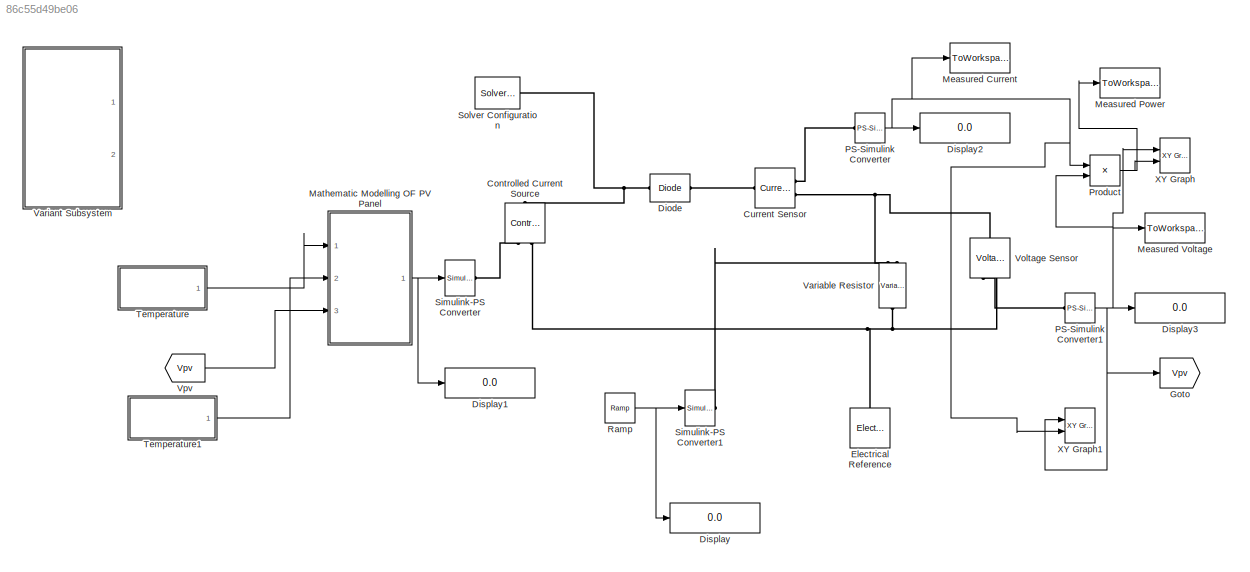
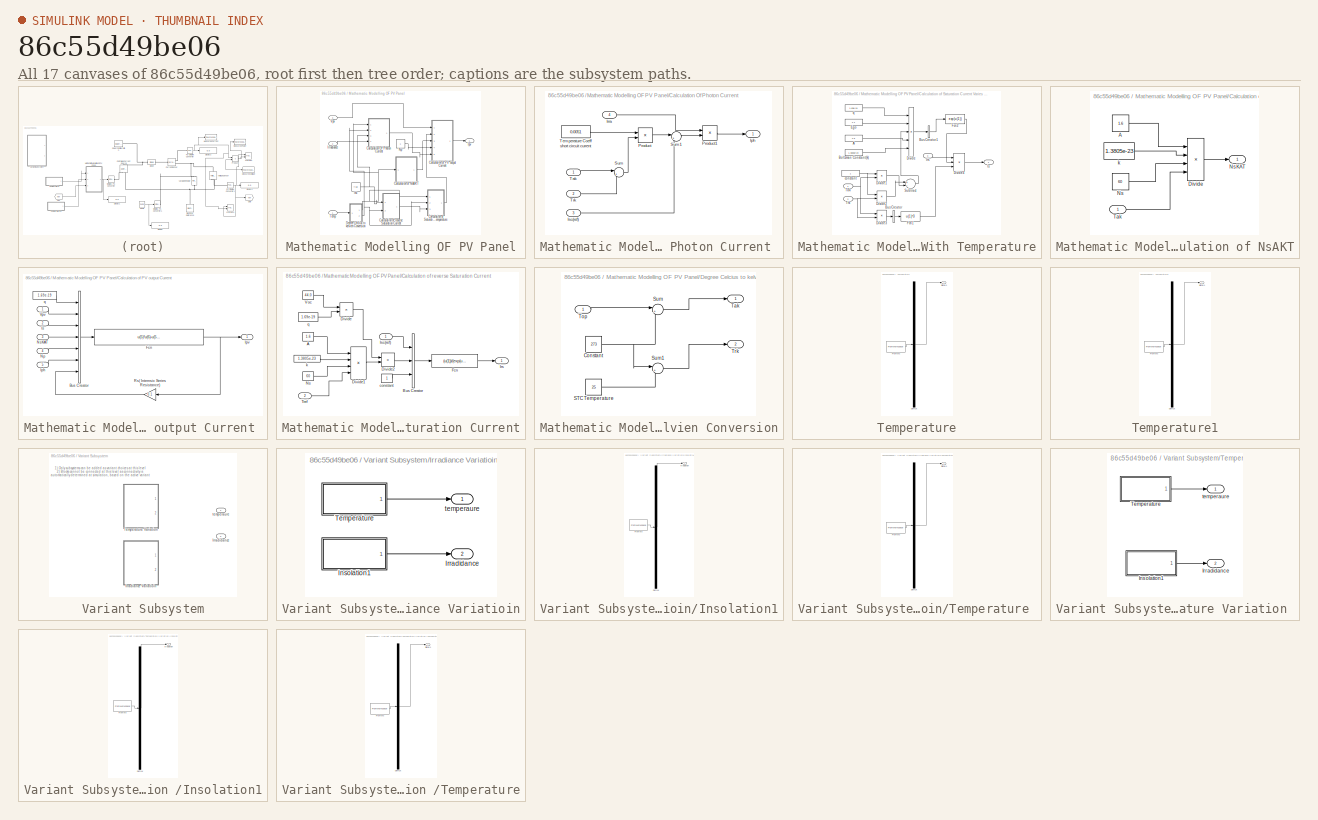
[diagram: thumbnail index - all 17 canvases of the model, root first then tree order]
MODEL slx_86c55d49be06
KIND model
BLOCK [Reference] Controlled Current Source  REF=fl_lib/Electrical/Electrical Sources/Controlled Current
Source
  ClassName = controlled_current
  ComponentPath = foundation.electrical.sources.controlled_current
  ComponentVariantNames = controlled_current
  ComponentVariants = foundation.electrical.sources.controlled_current
  Ports = [0, 0, 0, 0, 0, 1, 2]
  SchemaVersion = 1
  SourceBlock = fl_lib/Electrical/Electrical Sources/Controlled Current\nSource
  SourceFile = foundation.electrical.sources.controlled_current
  SourceType = Controlled Current\nSource
BLOCK [Reference] Current Sensor  REF=fl_lib/Electrical/Electrical Sensors/Current Sensor
  ClassName = current
  ComponentPath = foundation.electrical.sensors.current
  ComponentVariantNames = current
  ComponentVariants = foundation.electrical.sensors.current
  Ports = [0, 0, 0, 0, 0, 1, 2]
  SchemaVersion = 1
  SourceBlock = fl_lib/Electrical/Electrical Sensors/Current Sensor
  SourceFile = foundation.electrical.sensors.current
  SourceType = Current Sensor
BLOCK [Reference] Diode  REF=fl_lib/Electrical/Electrical Elements/Diode
  ClassName = pwl_diode
  ComponentPath = foundation.electrical.elements.pwl_diode
  ComponentVariantNames = pwl_diode
  ComponentVariants = foundation.electrical.elements.pwl_diode
  Goff = 1e-8
  Goff_unit = 1/Ohm
  Ports = [0, 0, 0, 0, 0, 1, 1]
  Ron = 0.3
  Ron_unit = Ohm
  SchemaVersion = 1
  SourceBlock = fl_lib/Electrical/Electrical Elements/Diode
  SourceFile = foundation.electrical.elements.pwl_diode
  SourceType = Diode
  Vf = 0.6
  Vf_unit = V
  i = 0
  i_priority = High
  i_specify = off
  i_unit = A
  v = 0
  v_priority = High
  v_specify = off
  v_unit = V
BLOCK [Display] Display
  Decimation = 1
  Ports = [1]
BLOCK [Display] Display1
  Decimation = 1
  Ports = [1]
BLOCK [Display] Display2
  Decimation = 1
  Ports = [1]
BLOCK [Display] Display3
  Decimation = 1
  Ports = [1]
BLOCK [Reference] Electrical Reference  REF=fl_lib/Electrical/Electrical Elements/Electrical Reference
  ClassName = reference
  ComponentPath = foundation.electrical.elements.reference
  ComponentVariantNames = reference
  ComponentVariants = foundation.electrical.elements.reference
  Ports = [0, 0, 0, 0, 0, 1]
  SchemaVersion = 1
  SourceBlock = fl_lib/Electrical/Electrical Elements/Electrical Reference
  SourceFile = foundation.electrical.elements.reference
  SourceType = Electrical Reference
BLOCK [Goto] Goto
  GotoTag = Vpv
BLOCK [SubSystem] Mathematic Modelling OF PV Panel
  Ports = [3, 1]
  RequestExecContextInheritance = off
BLOCK [SubSystem] Mathematic Modelling OF PV Panel/Calculation Of Photon Current 
  Ports = [4, 1]
  RequestExecContextInheritance = off
BLOCK [Outport] Mathematic Modelling OF PV Panel/Calculation Of Photon Current /Iph
  IconDisplay = Port number
BLOCK [Inport] Mathematic Modelling OF PV Panel/Calculation Of Photon Current /Irra
  IconDisplay = Port number
  Port = 4
BLOCK [Inport] Mathematic Modelling OF PV Panel/Calculation Of Photon Current /Isc(ref)
  IconDisplay = Port number
  Port = 3
BLOCK [Product] Mathematic Modelling OF PV Panel/Calculation Of Photon Current /Product
  InputSameDT = off
  OutDataTypeStr = Inherit: Inherit via internal rule
  Ports = [2, 1]
  RndMeth = Floor
  SaturateOnIntegerOverflow = off
BLOCK [Product] Mathematic Modelling OF PV Panel/Calculation Of Photon Current /Product1
  InputSameDT = off
  OutDataTypeStr = Inherit: Inherit via internal rule
  Ports = [2, 1]
  RndMeth = Floor
  SaturateOnIntegerOverflow = off
BLOCK [Sum] Mathematic Modelling OF PV Panel/Calculation Of Photon Current /Sum
  IconShape = round
  InputSameDT = off
  Inputs = |+-
  OutDataTypeStr = Inherit: Inherit via internal rule
  Ports = [2, 1]
  SaturateOnIntegerOverflow = off
BLOCK [Sum] Mathematic Modelling OF PV Panel/Calculation Of Photon Current /Sum1
  IconShape = round
  InputSameDT = off
  Inputs = |++
  OutDataTypeStr = Inherit: Inherit via internal rule
  Ports = [2, 1]
  SaturateOnIntegerOverflow = off
BLOCK [Inport] Mathematic Modelling OF PV Panel/Calculation Of Photon Current /Tak
  IconDisplay = Port number
BLOCK [Constant] Mathematic Modelling OF PV Panel/Calculation Of Photon Current /Temperature Coeff short circuit current 
  Value = 0.0051
BLOCK [Inport] Mathematic Modelling OF PV Panel/Calculation Of Photon Current /Trk
  IconDisplay = Port number
  Port = 2
BLOCK [SubSystem] Mathematic Modelling OF PV Panel/Calculation of NsAKT
  Ports = [1, 1]
  RequestExecContextInheritance = off
BLOCK [Constant] Mathematic Modelling OF PV Panel/Calculation of NsAKT/A
  Value = 1.6
BLOCK [Product] Mathematic Modelling OF PV Panel/Calculation of NsAKT/Divide
  InputSameDT = off
  Inputs = ****
  OutDataTypeStr = Inherit: Inherit via internal rule
  Ports = [4, 1]
  RndMeth = Floor
  SaturateOnIntegerOverflow = off
BLOCK [Constant] Mathematic Modelling OF PV Panel/Calculation of NsAKT/Ns
  Value = 60
BLOCK [Outport] Mathematic Modelling OF PV Panel/Calculation of NsAKT/NsKAT
  IconDisplay = Port number
BLOCK [Inport] Mathematic Modelling OF PV Panel/Calculation of NsAKT/Tak 
  IconDisplay = Port number
BLOCK [Constant] Mathematic Modelling OF PV Panel/Calculation of NsAKT/k
  Value = 1.3805e-23
BLOCK [SubSystem] Mathematic Modelling OF PV Panel/Calculation of PV output Current 
  Ports = [5, 1]
  RequestExecContextInheritance = off
BLOCK [BusCreator] Mathematic Modelling OF PV Panel/Calculation of PV output Current /Bus Creator
  DisplayOption = bar
  Inputs = 7
  Ports = [7, 1]
BLOCK [Fcn] Mathematic Modelling OF PV Panel/Calculation of PV output Current /Fcn
  Expr = u(5)*u(6)-u(5)*u(3)*(exp((u(1)*(u(2)+u(7)))/(u(4))) - 1)
BLOCK [Inport] Mathematic Modelling OF PV Panel/Calculation of PV output Current /Iph
  IconDisplay = Port number
  Port = 5
BLOCK [Outport] Mathematic Modelling OF PV Panel/Calculation of PV output Current /Ipv 
  IconDisplay = Port number
BLOCK [Inport] Mathematic Modelling OF PV Panel/Calculation of PV output Current /Is
  IconDisplay = Port number
  Port = 2
BLOCK [Inport] Mathematic Modelling OF PV Panel/Calculation of PV output Current /Np
  IconDisplay = Port number
  Port = 4
BLOCK [Inport] Mathematic Modelling OF PV Panel/Calculation of PV output Current /NsKAT
  IconDisplay = Port number
  Port = 3
BLOCK [Gain] Mathematic Modelling OF PV Panel/Calculation of PV output Current /Rs( Internsic Series Resistance)
  Gain = 0.1
  OutDataTypeStr = Inherit: Inherit via internal rule
  ParamDataTypeStr = Inherit: Inherit via internal rule
  SaturateOnIntegerOverflow = off
BLOCK [Inport] Mathematic Modelling OF PV Panel/Calculation of PV output Current /Vpv
  IconDisplay = Port number
BLOCK [Constant] Mathematic Modelling OF PV Panel/Calculation of PV output Current /q
  Value = 1.69e-19
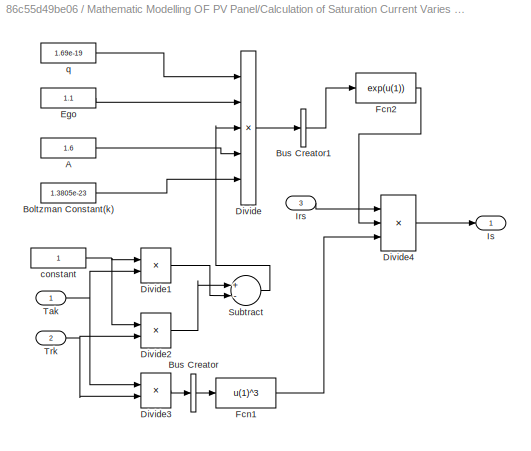
BLOCK [SubSystem] Mathematic Modelling OF PV Panel/Calculation of Saturation Current Varies With Temperature
  Ports = [3, 1]
  RequestExecContextInheritance = off
BLOCK [Constant] Mathematic Modelling OF PV Panel/Calculation of Saturation Current Varies With Temperature/A 
  Value = 1.6
BLOCK [Constant] Mathematic Modelling OF PV Panel/Calculation of Saturation Current Varies With Temperature/Boltzman Constant(k)
  Value = 1.3805e-23
BLOCK [BusCreator] Mathematic Modelling OF PV Panel/Calculation of Saturation Current Varies With Temperature/Bus Creator
  DisplayOption = bar
  Inputs = 1
  Ports = [1, 1]
BLOCK [BusCreator] Mathematic Modelling OF PV Panel/Calculation of Saturation Current Varies With Temperature/Bus Creator1
  DisplayOption = bar
  Inputs = 1
  Ports = [1, 1]
BLOCK [Product] Mathematic Modelling OF PV Panel/Calculation of Saturation Current Varies With Temperature/Divide
  InputSameDT = off
  Inputs = ***//
  OutDataTypeStr = Inherit: Inherit via internal rule
  Ports = [5, 1]
  RndMeth = Floor
  SaturateOnIntegerOverflow = off
BLOCK [Product] Mathematic Modelling OF PV Panel/Calculation of Saturation Current Varies With Temperature/Divide1
  InputSameDT = off
  Inputs = */
  OutDataTypeStr = Inherit: Inherit via internal rule
  Ports = [2, 1]
  RndMeth = Floor
  SaturateOnIntegerOverflow = off
BLOCK [Product] Mathematic Modelling OF PV Panel/Calculation of Saturation Current Varies With Temperature/Divide2
  InputSameDT = off
  Inputs = */
  OutDataTypeStr = Inherit: Inherit via internal rule
  Ports = [2, 1]
  RndMeth = Floor
  SaturateOnIntegerOverflow = off
BLOCK [Product] Mathematic Modelling OF PV Panel/Calculation of Saturation Current Varies With Temperature/Divide3
  InputSameDT = off
  Inputs = */
  OutDataTypeStr = Inherit: Inherit via internal rule
  Ports = [2, 1]
  RndMeth = Floor
  SaturateOnIntegerOverflow = off
BLOCK [Product] Mathematic Modelling OF PV Panel/Calculation of Saturation Current Varies With Temperature/Divide4
  InputSameDT = off
  Inputs = ***
  OutDataTypeStr = Inherit: Inherit via internal rule
  Ports = [3, 1]
  RndMeth = Floor
  SaturateOnIntegerOverflow = off
BLOCK [Constant] Mathematic Modelling OF PV Panel/Calculation of Saturation Current Varies With Temperature/Ego
  Value = 1.1
BLOCK [Fcn] Mathematic Modelling OF PV Panel/Calculation of Saturation Current Varies With Temperature/Fcn1
  Expr = u(1)^3
BLOCK [Fcn] Mathematic Modelling OF PV Panel/Calculation of Saturation Current Varies With Temperature/Fcn2
  Expr = exp(u(1))
BLOCK [Inport] Mathematic Modelling OF PV Panel/Calculation of Saturation Current Varies With Temperature/Irs 
  IconDisplay = Port number
  Port = 3
BLOCK [Outport] Mathematic Modelling OF PV Panel/Calculation of Saturation Current Varies With Temperature/Is
  IconDisplay = Port number
BLOCK [Sum] Mathematic Modelling OF PV Panel/Calculation of Saturation Current Varies With Temperature/Subtract
  InputSameDT = off
  Inputs = +-
  OutDataTypeStr = Inherit: Inherit via internal rule
  Ports = [2, 1]
  SaturateOnIntegerOverflow = off
BLOCK [Inport] Mathematic Modelling OF PV Panel/Calculation of Saturation Current Varies With Temperature/Tak
  IconDisplay = Port number
BLOCK [Inport] Mathematic Modelling OF PV Panel/Calculation of Saturation Current Varies With Temperature/Trk 
  IconDisplay = Port number
  Port = 2
BLOCK [Constant] Mathematic Modelling OF PV Panel/Calculation of Saturation Current Varies With Temperature/constant 
BLOCK [Constant] Mathematic Modelling OF PV Panel/Calculation of Saturation Current Varies With Temperature/q 
  Value = 1.69e-19
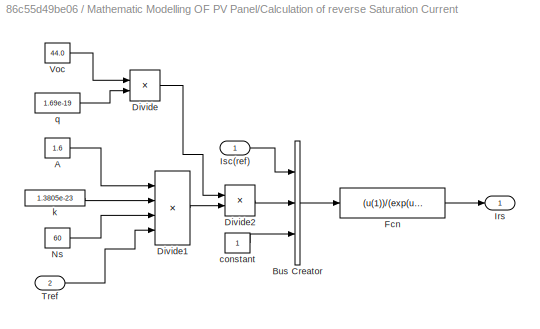
BLOCK [SubSystem] Mathematic Modelling OF PV Panel/Calculation of reverse Saturation Current
  Ports = [2, 1]
  RequestExecContextInheritance = off
BLOCK [Constant] Mathematic Modelling OF PV Panel/Calculation of reverse Saturation Current/A
  Value = 1.6
BLOCK [BusCreator] Mathematic Modelling OF PV Panel/Calculation of reverse Saturation Current/Bus Creator
  DisplayOption = bar
  Inputs = 3
  Ports = [3, 1]
BLOCK [Product] Mathematic Modelling OF PV Panel/Calculation of reverse Saturation Current/Divide
  InputSameDT = off
  Inputs = **
  OutDataTypeStr = Inherit: Inherit via internal rule
  Ports = [2, 1]
  RndMeth = Floor
  SaturateOnIntegerOverflow = off
BLOCK [Product] Mathematic Modelling OF PV Panel/Calculation of reverse Saturation Current/Divide1
  InputSameDT = off
  Inputs = ****
  OutDataTypeStr = Inherit: Inherit via internal rule
  Ports = [4, 1]
  RndMeth = Floor
  SaturateOnIntegerOverflow = off
BLOCK [Product] Mathematic Modelling OF PV Panel/Calculation of reverse Saturation Current/Divide2
  InputSameDT = off
  Inputs = */
  OutDataTypeStr = Inherit: Inherit via internal rule
  Ports = [2, 1]
  RndMeth = Floor
  SaturateOnIntegerOverflow = off
BLOCK [Fcn] Mathematic Modelling OF PV Panel/Calculation of reverse Saturation Current/Fcn
  Expr = (u(1))/(exp(u(2))-u(3))
BLOCK [Outport] Mathematic Modelling OF PV Panel/Calculation of reverse Saturation Current/Irs
  IconDisplay = Port number
BLOCK [Inport] Mathematic Modelling OF PV Panel/Calculation of reverse Saturation Current/Isc(ref) 
  IconDisplay = Port number
BLOCK [Constant] Mathematic Modelling OF PV Panel/Calculation of reverse Saturation Current/Ns
  Value = 60
BLOCK [Inport] Mathematic Modelling OF PV Panel/Calculation of reverse Saturation Current/Tref 
  IconDisplay = Port number
  Port = 2
BLOCK [Constant] Mathematic Modelling OF PV Panel/Calculation of reverse Saturation Current/Voc
  Value = 44.0
BLOCK [Constant] Mathematic Modelling OF PV Panel/Calculation of reverse Saturation Current/constant 
BLOCK [Constant] Mathematic Modelling OF PV Panel/Calculation of reverse Saturation Current/k
  Value = 1.3805e-23
BLOCK [Constant] Mathematic Modelling OF PV Panel/Calculation of reverse Saturation Current/q
  Value = 1.69e-19
BLOCK [SubSystem] Mathematic Modelling OF PV Panel/Degree Celcius to kelvien Conversion
  Ports = [1, 2]
  RequestExecContextInheritance = off
BLOCK [Constant] Mathematic Modelling OF PV Panel/Degree Celcius to kelvien Conversion/Constant
  Value = 273
BLOCK [Constant] Mathematic Modelling OF PV Panel/Degree Celcius to kelvien Conversion/STC Temperature
  Value = 25
BLOCK [Sum] Mathematic Modelling OF PV Panel/Degree Celcius to kelvien Conversion/Sum
  IconShape = round
  InputSameDT = off
  Inputs = |++
  OutDataTypeStr = Inherit: Inherit via internal rule
  Ports = [2, 1]
  SaturateOnIntegerOverflow = off
BLOCK [Sum] Mathematic Modelling OF PV Panel/Degree Celcius to kelvien Conversion/Sum1
  IconShape = round
  InputSameDT = off
  Inputs = |++
  OutDataTypeStr = Inherit: Inherit via internal rule
  Ports = [2, 1]
  SaturateOnIntegerOverflow = off
BLOCK [Outport] Mathematic Modelling OF PV Panel/Degree Celcius to kelvien Conversion/Tak
  IconDisplay = Port number
BLOCK [Inport] Mathematic Modelling OF PV Panel/Degree Celcius to kelvien Conversion/Top 
  IconDisplay = Port number
BLOCK [Outport] Mathematic Modelling OF PV Panel/Degree Celcius to kelvien Conversion/Trk
  IconDisplay = Port number
  Port = 2
BLOCK [Outport] Mathematic Modelling OF PV Panel/Ipv
  IconDisplay = Port number
BLOCK [Inport] Mathematic Modelling OF PV Panel/Irradiance
  IconDisplay = Port number
  Port = 2
BLOCK [Constant] Mathematic Modelling OF PV Panel/Isc
  Value = 7.58
BLOCK [Constant] Mathematic Modelling OF PV Panel/Np
BLOCK [Inport] Mathematic Modelling OF PV Panel/Temp
  IconDisplay = Port number
BLOCK [Inport] Mathematic Modelling OF PV Panel/Vpv
  IconDisplay = Port number
  Port = 3
BLOCK [ToWorkspace] Measured Current 
  FixptAsFi = on
  MaxDataPoints = inf
  Ports = [1]
  SampleTime = -1
  Save2DSignal = 3-D array (concatenate along third dimension)
  SaveFormat = Timeseries
  VariableName = Ipv
BLOCK [ToWorkspace] Measured Power 
  FixptAsFi = on
  MaxDataPoints = inf
  Ports = [1]
  SampleTime = -1
  Save2DSignal = 3-D array (concatenate along third dimension)
  SaveFormat = Timeseries
  VariableName = Ppv
BLOCK [ToWorkspace] Measured Voltage 
  FixptAsFi = on
  MaxDataPoints = inf
  Ports = [1]
  SampleTime = -1
  Save2DSignal = 3-D array (concatenate along third dimension)
  SaveFormat = Timeseries
  VariableName = Vpv
BLOCK [Reference] PS-Simulink Converter  REF=nesl_utility/PS-Simulink
Converter
  AffineConversion = off
  Frequencies = []
  LeftPortType = input
  PhysicalDomain = network_engine_domain
  Ports = [0, 1, 0, 0, 0, 1]
  PseudoPeriodic = off
  RightPortType = output
  SourceBlock = nesl_utility/PS-Simulink\nConverter
  SourceType = PS-Simulink\nConverter
  SubClassName = ps_output
  Unit = 1
BLOCK [Reference] PS-Simulink Converter1  REF=nesl_utility/PS-Simulink
Converter
  AffineConversion = off
  Frequencies = []
  LeftPortType = input
  PhysicalDomain = network_engine_domain
  Ports = [0, 1, 0, 0, 0, 1]
  PseudoPeriodic = off
  RightPortType = output
  SourceBlock = nesl_utility/PS-Simulink\nConverter
  SourceType = PS-Simulink\nConverter
  SubClassName = ps_output
  Unit = 1
BLOCK [Product] Product
  InputSameDT = off
  OutDataTypeStr = Inherit: Inherit via internal rule
  Ports = [2, 1]
  RndMeth = Floor
  SaturateOnIntegerOverflow = off
BLOCK [Reference] Ramp  REF=simulink/Sources/Ramp
  Ports = [0, 1]
  SourceBlock = simulink/Sources/Ramp
  SourceType = Ramp
  VectorParams1D = on
  X0 = 0
  slope = 777
  start = 0
BLOCK [Reference] Simulink-PS Converter  REF=nesl_utility/Simulink-PS
Converter
  AffineConversion = off
  Frequencies = []
  InputFilterTimeConstant = 0.001
  InputFiltering = off
  LeftPortType = input
  NoiseDistribution = none
  NoiseParameters = []
  PhysicalDomain = network_engine_domain
  Ports = [1, 0, 0, 0, 0, 0, 1]
  PseudoPeriodic = off
  RightPortType = output
  SimscapeFilterOrder = 1
  SourceBlock = nesl_utility/Simulink-PS\nConverter
  SourceType = Simulink-PS\nConverter
  SubClassName = ps_input
  UdotUserProvided = 1
  Unit = 1
BLOCK [Reference] Simulink-PS Converter1  REF=nesl_utility/Simulink-PS
Converter
  AffineConversion = off
  Frequencies = []
  InputFilterTimeConstant = 0.001
  InputFiltering = off
  LeftPortType = input
  NoiseDistribution = none
  NoiseParameters = []
  PhysicalDomain = network_engine_domain
  Ports = [1, 0, 0, 0, 0, 0, 1]
  PseudoPeriodic = off
  RightPortType = output
  SimscapeFilterOrder = 1
  SourceBlock = nesl_utility/Simulink-PS\nConverter
  SourceType = Simulink-PS\nConverter
  SubClassName = ps_input
  UdotUserProvided = 1
  Unit = 1
BLOCK [Reference] Solver Configuration  REF=nesl_utility/Solver
Configuration
  AbsTol = 1e-06
  Accelerate = off
  AutomaticFiltering = on
  DelaysMemoryBudget = 1024
  DoDC = on
  DoFixedCost = on
  EnableSwitchedLinearOptims = on
  FilteringTimeConstant = 0.001
  FrequencyDomain = off
  Harmonics = []
  LeftPortType = input
  LinearAlgebra = Sparse
  LocalSolverChoice = NE_BACKWARD_EULER_ADVANCER
  LocalSolverSampleTime = 0.001
  MaxModeIter = 2
  MaxNonlinIter = 3
  MinStep = 1e-09
  PhysicalDomain = network_engine_domain
  Ports = [0, 0, 0, 0, 0, 0, 1]
  Profile = off
  RelTol = 0.001
  ResidualTolerance = 1e-9
  RightPortType = generic
  SimulateNoise = off
  SourceBlock = nesl_utility/Solver\nConfiguration
  SourceType = Solver\nConfiguration
  SubClassName = solver
  ToWorkspace = off
  Tones = []
  UseCCode = off
  UseLocalSampling = off
  UseLocalSolver = on
BLOCK [SubSystem] Temperature
  ClipboardFcn = sigbuilder_block('clipboard');
  CloseFcn = sigbuilder_block('close');
  ContinueFcn = sigbuilder_block('continue');
  CopyFcn = sigbuilder_block('copy');
  DeleteFcn = sigbuilder_block('delete');
  LoadFcn = sigbuilder_block('load');
  MaskHideContents = on
  ModelCloseFcn = sigbuilder_block('modelClose');
  NameChangeFcn = sigbuilder_block('namechange');
  OpenFcn = sigbuilder_block('open',[437.25 180 550.5 395.25 ]);
  PauseFcn = sigbuilder_block('pause');
  Ports = [0, 1]
  PreSaveFcn = sigbuilder_block('preSave');
  RequestExecContextInheritance = off
  StartFcn = sigbuilder_block('start');
  StopFcn = sigbuilder_block('stop');
  Tag = STV Subsys
BLOCK [Demux] Temperature/Demux
  Outputs = 1
  Ports = [1, 1]
  Tag = STV Demux
BLOCK [FromWorkspace] Temperature/FromWs
  SampleTime = 0
  Tag = STV FromWs
  VariableName = tuvar
  ZeroCross = on
BLOCK [Outport] Temperature/Signal 1
  IconDisplay = Port number
  Tag = STV Outport
BLOCK [SubSystem] Temperature1
  ClipboardFcn = sigbuilder_block('clipboard');
  CloseFcn = sigbuilder_block('close');
  ContinueFcn = sigbuilder_block('continue');
  CopyFcn = sigbuilder_block('copy');
  DeleteFcn = sigbuilder_block('delete');
  LoadFcn = sigbuilder_block('load');
  MaskHideContents = on
  ModelCloseFcn = sigbuilder_block('modelClose');
  NameChangeFcn = sigbuilder_block('namechange');
  OpenFcn = sigbuilder_block('open',[437.25 180 550.5 395.25 ]);
  PauseFcn = sigbuilder_block('pause');
  Ports = [0, 1]
  PreSaveFcn = sigbuilder_block('preSave');
  RequestExecContextInheritance = off
  StartFcn = sigbuilder_block('start');
  StopFcn = sigbuilder_block('stop');
  Tag = STV Subsys
BLOCK [Demux] Temperature1/Demux
  Outputs = 1
  Ports = [1, 1]
  Tag = STV Demux
BLOCK [FromWorkspace] Temperature1/FromWs
  SampleTime = 0
  Tag = STV FromWs
  VariableName = tuvar
  ZeroCross = on
BLOCK [Outport] Temperature1/Signal 1
  IconDisplay = Port number
  Tag = STV Outport
BLOCK [Reference] Variable Resistor  REF=fl_lib/Electrical/Electrical Elements/Variable Resistor
  ClassName = variable_resistor
  ComponentPath = foundation.electrical.elements.variable_resistor
  ComponentVariantNames = variable_resistor
  ComponentVariants = foundation.electrical.elements.variable_resistor
  Ports = [0, 0, 0, 0, 0, 2, 1]
  Rmin = 0
  Rmin_unit = Ohm
  SchemaVersion = 1
  SourceBlock = fl_lib/Electrical/Electrical Elements/Variable Resistor
  SourceFile = foundation.electrical.elements.variable_resistor
  SourceType = Variable Resistor
  i = 0
  i_priority = High
  i_specify = off
  i_unit = A
  v = 0
  v_priority = High
  v_specify = off
  v_unit = V
BLOCK [SubSystem] Variant Subsystem
  Commented = on
  Ports = [0, 2]
  RequestExecContextInheritance = off
  Variant = on
BLOCK [SubSystem] Variant Subsystem/Irradiance Variatioin
  Ports = [0, 2]
  RequestExecContextInheritance = off
  TreatAsAtomicUnit = on
  VariantControl = Irradiance
BLOCK [SubSystem] Variant Subsystem/Irradiance Variatioin/Insolation1
  ClipboardFcn = sigbuilder_block('clipboard');
  CloseFcn = sigbuilder_block('close');
  ContinueFcn = sigbuilder_block('continue')
  CopyFcn = sigbuilder_block('copy');
  DeleteFcn = sigbuilder_block('delete');
  LoadFcn = sigbuilder_block('load');
  MaskHideContents = on
  ModelCloseFcn = sigbuilder_block('modelClose');
  NameChangeFcn = sigbuilder_block('namechange');
  OpenFcn = sigbuilder_block('open',[211.5 118.5 550.5 394.5 ]);
  PauseFcn = sigbuilder_block('pause')
  Ports = [0, 1]
  PreSaveFcn = sigbuilder_block('preSave');
  RequestExecContextInheritance = off
  StartFcn = sigbuilder_block('start');
  StopFcn = sigbuilder_block('stop');
  Tag = STV Subsys
BLOCK [Demux] Variant Subsystem/Irradiance Variatioin/Insolation1/Demux
  Outputs = 1
  Ports = [1, 1]
  Tag = STV Demux
BLOCK [FromWorkspace] Variant Subsystem/Irradiance Variatioin/Insolation1/FromWs
  SampleTime = 0
  Tag = STV FromWs
  VariableName = tuvar
  ZeroCross = on
BLOCK [Outport] Variant Subsystem/Irradiance Variatioin/Insolation1/irradiation
  IconDisplay = Port number
  Tag = STV Outport
BLOCK [Outport] Variant Subsystem/Irradiance Variatioin/Irradidance 
  IconDisplay = Port number
  Port = 2
BLOCK [SubSystem] Variant Subsystem/Irradiance Variatioin/Temperature 
  ClipboardFcn = sigbuilder_block('clipboard');
  CloseFcn = sigbuilder_block('close');
  ContinueFcn = sigbuilder_block('continue');
  CopyFcn = sigbuilder_block('copy');
  DeleteFcn = sigbuilder_block('delete');
  LoadFcn = sigbuilder_block('load');
  MaskHideContents = on
  ModelCloseFcn = sigbuilder_block('modelClose');
  NameChangeFcn = sigbuilder_block('namechange');
  OpenFcn = sigbuilder_block('open',[351 -51.75 543 385.5 ]);
  PauseFcn = sigbuilder_block('pause');
  Ports = [0, 1]
  PreSaveFcn = sigbuilder_block('preSave');
  RequestExecContextInheritance = off
  StartFcn = sigbuilder_block('start');
  StopFcn = sigbuilder_block('stop');
  Tag = STV Subsys
BLOCK [Demux] Variant Subsystem/Irradiance Variatioin/Temperature /Demux
  Outputs = 1
  Ports = [1, 1]
  Tag = STV Demux
BLOCK [FromWorkspace] Variant Subsystem/Irradiance Variatioin/Temperature /FromWs
  SampleTime = 0
  Tag = STV FromWs
  VariableName = tuvar
  ZeroCross = on
BLOCK [Outport] Variant Subsystem/Irradiance Variatioin/Temperature /Signal 1
  IconDisplay = Port number
  Tag = STV Outport
BLOCK [Outport] Variant Subsystem/Irradiance Variatioin/temperaure
  IconDisplay = Port number
BLOCK [Outport] Variant Subsystem/Irradidance 
  IconDisplay = Port number
  Port = 2
BLOCK [SubSystem] Variant Subsystem/Temperature Variation 
  Ports = [0, 2]
  RequestExecContextInheritance = off
  TreatAsAtomicUnit = on
  VariantControl = Temperature
BLOCK [SubSystem] Variant Subsystem/Temperature Variation /Insolation1
  ClipboardFcn = sigbuilder_block('clipboard');
  CloseFcn = sigbuilder_block('close');
  ContinueFcn = sigbuilder_block('continue')
  CopyFcn = sigbuilder_block('copy');
  DeleteFcn = sigbuilder_block('delete');
  LoadFcn = sigbuilder_block('load');
  MaskHideContents = on
  ModelCloseFcn = sigbuilder_block('modelClose');
  NameChangeFcn = sigbuilder_block('namechange');
  OpenFcn = sigbuilder_block('open',[557.25 17.25 550.5 394.5 ]);
  PauseFcn = sigbuilder_block('pause')
  Ports = [0, 1]
  PreSaveFcn = sigbuilder_block('preSave');
  RequestExecContextInheritance = off
  StartFcn = sigbuilder_block('start');
  StopFcn = sigbuilder_block('stop');
  Tag = STV Subsys
BLOCK [Demux] Variant Subsystem/Temperature Variation /Insolation1/Demux
  Outputs = 1
  Ports = [1, 1]
  Tag = STV Demux
BLOCK [FromWorkspace] Variant Subsystem/Temperature Variation /Insolation1/FromWs
  SampleTime = 0
  Tag = STV FromWs
  VariableName = tuvar
  ZeroCross = on
BLOCK [Outport] Variant Subsystem/Temperature Variation /Insolation1/irradiation
  IconDisplay = Port number
  Tag = STV Outport
BLOCK [Outport] Variant Subsystem/Temperature Variation /Irradidance 
  IconDisplay = Port number
  Port = 2
BLOCK [SubSystem] Variant Subsystem/Temperature Variation /Temperature
  ClipboardFcn = sigbuilder_block('clipboard');
  CloseFcn = sigbuilder_block('close');
  ContinueFcn = sigbuilder_block('continue');
  CopyFcn = sigbuilder_block('copy');
  DeleteFcn = sigbuilder_block('delete');
  LoadFcn = sigbuilder_block('load');
  MaskHideContents = on
  ModelCloseFcn = sigbuilder_block('modelClose');
  NameChangeFcn = sigbuilder_block('namechange');
  OpenFcn = sigbuilder_block('open',[437.25 180 550.5 395.25 ]);
  PauseFcn = sigbuilder_block('pause');
  Ports = [0, 1]
  PreSaveFcn = sigbuilder_block('preSave');
  RequestExecContextInheritance = off
  StartFcn = sigbuilder_block('start');
  StopFcn = sigbuilder_block('stop');
  Tag = STV Subsys
BLOCK [Demux] Variant Subsystem/Temperature Variation /Temperature/Demux
  Outputs = 1
  Ports = [1, 1]
  Tag = STV Demux
BLOCK [FromWorkspace] Variant Subsystem/Temperature Variation /Temperature/FromWs
  SampleTime = 0
  Tag = STV FromWs
  VariableName = tuvar
  ZeroCross = on
BLOCK [Outport] Variant Subsystem/Temperature Variation /Temperature/Signal 1
  IconDisplay = Port number
  Tag = STV Outport
BLOCK [Outport] Variant Subsystem/Temperature Variation /temperaure
  IconDisplay = Port number
BLOCK [Outport] Variant Subsystem/temperaure
  IconDisplay = Port number
BLOCK [Reference] Voltage Sensor  REF=fl_lib/Electrical/Electrical Sensors/Voltage Sensor
  ClassName = voltage
  ComponentPath = foundation.electrical.sensors.voltage
  ComponentVariantNames = voltage
  ComponentVariants = foundation.electrical.sensors.voltage
  Ports = [0, 0, 0, 0, 0, 1, 2]
  SchemaVersion = 1
  SourceBlock = fl_lib/Electrical/Electrical Sensors/Voltage Sensor
  SourceFile = foundation.electrical.sensors.voltage
  SourceType = Voltage Sensor
BLOCK [From] Vpv 
  GotoTag = Vpv
BLOCK [Reference] XY Graph  REF=simulink/Sinks/XY Graph
  Ports = [2]
  SourceBlock = simulink/Sinks/XY Graph
  SourceType = XY scope.
  st = -1
  xmax = 45
  xmin = 0
  ymax = 300
  ymin = 0
BLOCK [Reference] XY Graph1  REF=simulink/Sinks/XY Graph
  Ports = [2]
  SourceBlock = simulink/Sinks/XY Graph
  SourceType = XY scope.
  st = -1
  xmax = 45
  xmin = 0
  ymax = 10
  ymin = 0
ANNOTATION Variant Subsystem: 1) Only subsystems can be added as variant choices at this level 2) Blocks cannot be connected at this level as connectivity is automatically determined at simulation, based on the active variant
LINE Mathematic Modelling OF PV Panel/Calculation Of Photon Current /Irra:1 -> Mathematic Modelling OF PV Panel/Calculation Of Photon Current /Product1:1
LINE Mathematic Modelling OF PV Panel/Calculation Of Photon Current /Isc(ref):1 -> Mathematic Modelling OF PV Panel/Calculation Of Photon Current /Sum1:2
LINE Mathematic Modelling OF PV Panel/Calculation Of Photon Current /Product1:1 -> Mathematic Modelling OF PV Panel/Calculation Of Photon Current /Iph:1
LINE Mathematic Modelling OF PV Panel/Calculation Of Photon Current /Product:1 -> Mathematic Modelling OF PV Panel/Calculation Of Photon Current /Sum1:1
LINE Mathematic Modelling OF PV Panel/Calculation Of Photon Current /Sum1:1 -> Mathematic Modelling OF PV Panel/Calculation Of Photon Current /Product1:2
LINE Mathematic Modelling OF PV Panel/Calculation Of Photon Current /Sum:1 -> Mathematic Modelling OF PV Panel/Calculation Of Photon Current /Product:2
LINE Mathematic Modelling OF PV Panel/Calculation Of Photon Current /Tak:1 -> Mathematic Modelling OF PV Panel/Calculation Of Photon Current /Sum:1
LINE Mathematic Modelling OF PV Panel/Calculation Of Photon Current /Temperature Coeff short circuit current :1 -> Mathematic Modelling OF PV Panel/Calculation Of Photon Current /Product:1
LINE Mathematic Modelling OF PV Panel/Calculation Of Photon Current /Trk:1 -> Mathematic Modelling OF PV Panel/Calculation Of Photon Current /Sum:2
LINE Mathematic Modelling OF PV Panel/Calculation Of Photon Current :1 -> Mathematic Modelling OF PV Panel/Calculation of PV output Current :5
LINE Mathematic Modelling OF PV Panel/Calculation of NsAKT/A:1 -> Mathematic Modelling OF PV Panel/Calculation of NsAKT/Divide:1
LINE Mathematic Modelling OF PV Panel/Calculation of NsAKT/Divide:1 -> Mathematic Modelling OF PV Panel/Calculation of NsAKT/NsKAT:1
LINE Mathematic Modelling OF PV Panel/Calculation of NsAKT/Ns:1 -> Mathematic Modelling OF PV Panel/Calculation of NsAKT/Divide:3
LINE Mathematic Modelling OF PV Panel/Calculation of NsAKT/Tak :1 -> Mathematic Modelling OF PV Panel/Calculation of NsAKT/Divide:4
LINE Mathematic Modelling OF PV Panel/Calculation of NsAKT/k:1 -> Mathematic Modelling OF PV Panel/Calculation of NsAKT/Divide:2
LINE Mathematic Modelling OF PV Panel/Calculation of NsAKT:1 -> Mathematic Modelling OF PV Panel/Calculation of PV output Current :3
LINE Mathematic Modelling OF PV Panel/Calculation of PV output Current /Bus Creator:1 -> Mathematic Modelling OF PV Panel/Calculation of PV output Current /Fcn:1
NET Mathematic Modelling OF PV Panel/Calculation of PV output Current /Fcn:1 -> Mathematic Modelling OF PV Panel/Calculation of PV output Current /Ipv :1, Mathematic Modelling OF PV Panel/Calculation of PV output Current /Rs( Internsic Series Resistance):1
LINE Mathematic Modelling OF PV Panel/Calculation of PV output Current /Iph:1 -> Mathematic Modelling OF PV Panel/Calculation of PV output Current /Bus Creator:6
LINE Mathematic Modelling OF PV Panel/Calculation of PV output Current /Is:1 -> Mathematic Modelling OF PV Panel/Calculation of PV output Current /Bus Creator:3
LINE Mathematic Modelling OF PV Panel/Calculation of PV output Current /Np:1 -> Mathematic Modelling OF PV Panel/Calculation of PV output Current /Bus Creator:5
LINE Mathematic Modelling OF PV Panel/Calculation of PV output Current /NsKAT:1 -> Mathematic Modelling OF PV Panel/Calculation of PV output Current /Bus Creator:4
LINE Mathematic Modelling OF PV Panel/Calculation of PV output Current /Rs( Internsic Series Resistance):1 -> Mathematic Modelling OF PV Panel/Calculation of PV output Current /Bus Creator:7
LINE Mathematic Modelling OF PV Panel/Calculation of PV output Current /Vpv:1 -> Mathematic Modelling OF PV Panel/Calculation of PV output Current /Bus Creator:2
LINE Mathematic Modelling OF PV Panel/Calculation of PV output Current /q:1 -> Mathematic Modelling OF PV Panel/Calculation of PV output Current /Bus Creator:1
LINE Mathematic Modelling OF PV Panel/Calculation of PV output Current :1 -> Mathematic Modelling OF PV Panel/Ipv:1
LINE Mathematic Modelling OF PV Panel/Calculation of Saturation Current Varies With Temperature/A :1 -> Mathematic Modelling OF PV Panel/Calculation of Saturation Current Varies With Temperature/Divide:4
LINE Mathematic Modelling OF PV Panel/Calculation of Saturation Current Varies With Temperature/Boltzman Constant(k):1 -> Mathematic Modelling OF PV Panel/Calculation of Saturation Current Varies With Temperature/Divide:5
LINE Mathematic Modelling OF PV Panel/Calculation of Saturation Current Varies With Temperature/Bus Creator1:1 -> Mathematic Modelling OF PV Panel/Calculation of Saturation Current Varies With Temperature/Fcn2:1
LINE Mathematic Modelling OF PV Panel/Calculation of Saturation Current Varies With Temperature/Bus Creator:1 -> Mathematic Modelling OF PV Panel/Calculation of Saturation Current Varies With Temperature/Fcn1:1
LINE Mathematic Modelling OF PV Panel/Calculation of Saturation Current Varies With Temperature/Divide1:1 -> Mathematic Modelling OF PV Panel/Calculation of Saturation Current Varies With Temperature/Subtract:2
LINE Mathematic Modelling OF PV Panel/Calculation of Saturation Current Varies With Temperature/Divide2:1 -> Mathematic Modelling OF PV Panel/Calculation of Saturation Current Varies With Temperature/Subtract:1
LINE Mathematic Modelling OF PV Panel/Calculation of Saturation Current Varies With Temperature/Divide3:1 -> Mathematic Modelling OF PV Panel/Calculation of Saturation Current Varies With Temperature/Bus Creator:1
LINE Mathematic Modelling OF PV Panel/Calculation of Saturation Current Varies With Temperature/Divide4:1 -> Mathematic Modelling OF PV Panel/Calculation of Saturation Current Varies With Temperature/Is:1
LINE Mathematic Modelling OF PV Panel/Calculation of Saturation Current Varies With Temperature/Divide:1 -> Mathematic Modelling OF PV Panel/Calculation of Saturation Current Varies With Temperature/Bus Creator1:1
LINE Mathematic Modelling OF PV Panel/Calculation of Saturation Current Varies With Temperature/Ego:1 -> Mathematic Modelling OF PV Panel/Calculation of Saturation Current Varies With Temperature/Divide:2
LINE Mathematic Modelling OF PV Panel/Calculation of Saturation Current Varies With Temperature/Fcn1:1 -> Mathematic Modelling OF PV Panel/Calculation of Saturation Current Varies With Temperature/Divide4:3
LINE Mathematic Modelling OF PV Panel/Calculation of Saturation Current Varies With Temperature/Fcn2:1 -> Mathematic Modelling OF PV Panel/Calculation of Saturation Current Varies With Temperature/Divide4:2
LINE Mathematic Modelling OF PV Panel/Calculation of Saturation Current Varies With Temperature/Irs :1 -> Mathematic Modelling OF PV Panel/Calculation of Saturation Current Varies With Temperature/Divide4:1
LINE Mathematic Modelling OF PV Panel/Calculation of Saturation Current Varies With Temperature/Subtract:1 -> Mathematic Modelling OF PV Panel/Calculation of Saturation Current Varies With Temperature/Divide:3
NET Mathematic Modelling OF PV Panel/Calculation of Saturation Current Varies With Temperature/Tak:1 -> Mathematic Modelling OF PV Panel/Calculation of Saturation Current Varies With Temperature/Divide1:2, Mathematic Modelling OF PV Panel/Calculation of Saturation Current Varies With Temperature/Divide3:1
NET Mathematic Modelling OF PV Panel/Calculation of Saturation Current Varies With Temperature/Trk :1 -> Mathematic Modelling OF PV Panel/Calculation of Saturation Current Varies With Temperature/Divide2:2, Mathematic Modelling OF PV Panel/Calculation of Saturation Current Varies With Temperature/Divide3:2
NET Mathematic Modelling OF PV Panel/Calculation of Saturation Current Varies With Temperature/constant :1 -> Mathematic Modelling OF PV Panel/Calculation of Saturation Current Varies With Temperature/Divide1:1, Mathematic Modelling OF PV Panel/Calculation of Saturation Current Varies With Temperature/Divide2:1
LINE Mathematic Modelling OF PV Panel/Calculation of Saturation Current Varies With Temperature/q :1 -> Mathematic Modelling OF PV Panel/Calculation of Saturation Current Varies With Temperature/Divide:1
LINE Mathematic Modelling OF PV Panel/Calculation of Saturation Current Varies With Temperature:1 -> Mathematic Modelling OF PV Panel/Calculation of PV output Current :2
LINE Mathematic Modelling OF PV Panel/Calculation of reverse Saturation Current/A:1 -> Mathematic Modelling OF PV Panel/Calculation of reverse Saturation Current/Divide1:1
LINE Mathematic Modelling OF PV Panel/Calculation of reverse Saturation Current/Bus Creator:1 -> Mathematic Modelling OF PV Panel/Calculation of reverse Saturation Current/Fcn:1
LINE Mathematic Modelling OF PV Panel/Calculation of reverse Saturation Current/Divide1:1 -> Mathematic Modelling OF PV Panel/Calculation of reverse Saturation Current/Divide2:2
LINE Mathematic Modelling OF PV Panel/Calculation of reverse Saturation Current/Divide2:1 -> Mathematic Modelling OF PV Panel/Calculation of reverse Saturation Current/Bus Creator:2
LINE Mathematic Modelling OF PV Panel/Calculation of reverse Saturation Current/Divide:1 -> Mathematic Modelling OF PV Panel/Calculation of reverse Saturation Current/Divide2:1
LINE Mathematic Modelling OF PV Panel/Calculation of reverse Saturation Current/Fcn:1 -> Mathematic Modelling OF PV Panel/Calculation of reverse Saturation Current/Irs:1
LINE Mathematic Modelling OF PV Panel/Calculation of reverse Saturation Current/Isc(ref) :1 -> Mathematic Modelling OF PV Panel/Calculation of reverse Saturation Current/Bus Creator:1
LINE Mathematic Modelling OF PV Panel/Calculation of reverse Saturation Current/Ns:1 -> Mathematic Modelling OF PV Panel/Calculation of reverse Saturation Current/Divide1:3
LINE Mathematic Modelling OF PV Panel/Calculation of reverse Saturation Current/Tref :1 -> Mathematic Modelling OF PV Panel/Calculation of reverse Saturation Current/Divide1:4
LINE Mathematic Modelling OF PV Panel/Calculation of reverse Saturation Current/Voc:1 -> Mathematic Modelling OF PV Panel/Calculation of reverse Saturation Current/Divide:1
LINE Mathematic Modelling OF PV Panel/Calculation of reverse Saturation Current/constant :1 -> Mathematic Modelling OF PV Panel/Calculation of reverse Saturation Current/Bus Creator:3
LINE Mathematic Modelling OF PV Panel/Calculation of reverse Saturation Current/k:1 -> Mathematic Modelling OF PV Panel/Calculation of reverse Saturation Current/Divide1:2
LINE Mathematic Modelling OF PV Panel/Calculation of reverse Saturation Current/q:1 -> Mathematic Modelling OF PV Panel/Calculation of reverse Saturation Current/Divide:2
LINE Mathematic Modelling OF PV Panel/Calculation of reverse Saturation Current:1 -> Mathematic Modelling OF PV Panel/Calculation of Saturation Current Varies With Temperature:3
NET Mathematic Modelling OF PV Panel/Degree Celcius to kelvien Conversion/Constant:1 -> Mathematic Modelling OF PV Panel/Degree Celcius to kelvien Conversion/Sum1:1, Mathematic Modelling OF PV Panel/Degree Celcius to kelvien Conversion/Sum:2
LINE Mathematic Modelling OF PV Panel/Degree Celcius to kelvien Conversion/STC Temperature:1 -> Mathematic Modelling OF PV Panel/Degree Celcius to kelvien Conversion/Sum1:2
LINE Mathematic Modelling OF PV Panel/Degree Celcius to kelvien Conversion/Sum1:1 -> Mathematic Modelling OF PV Panel/Degree Celcius to kelvien Conversion/Trk:1
LINE Mathematic Modelling OF PV Panel/Degree Celcius to kelvien Conversion/Sum:1 -> Mathematic Modelling OF PV Panel/Degree Celcius to kelvien Conversion/Tak:1
LINE Mathematic Modelling OF PV Panel/Degree Celcius to kelvien Conversion/Top :1 -> Mathematic Modelling OF PV Panel/Degree Celcius to kelvien Conversion/Sum:1
NET Mathematic Modelling OF PV Panel/Degree Celcius to kelvien Conversion:1 -> Mathematic Modelling OF PV Panel/Calculation Of Photon Current :1, Mathematic Modelling OF PV Panel/Calculation of NsAKT:1, Mathematic Modelling OF PV Panel/Calculation of Saturation Current Varies With Temperature:1
NET Mathematic Modelling OF PV Panel/Degree Celcius to kelvien Conversion:2 -> Mathematic Modelling OF PV Panel/Calculation Of Photon Current :2, Mathematic Modelling OF PV Panel/Calculation of Saturation Current Varies With Temperature:2, Mathematic Modelling OF PV Panel/Calculation of reverse Saturation Current:2
LINE Mathematic Modelling OF PV Panel/Irradiance:1 -> Mathematic Modelling OF PV Panel/Calculation Of Photon Current :4
NET Mathematic Modelling OF PV Panel/Isc:1 -> Mathematic Modelling OF PV Panel/Calculation Of Photon Current :3, Mathematic Modelling OF PV Panel/Calculation of reverse Saturation Current:1
LINE Mathematic Modelling OF PV Panel/Np:1 -> Mathematic Modelling OF PV Panel/Calculation of PV output Current :4
LINE Mathematic Modelling OF PV Panel/Temp:1 -> Mathematic Modelling OF PV Panel/Degree Celcius to kelvien Conversion:1
LINE Mathematic Modelling OF PV Panel/Vpv:1 -> Mathematic Modelling OF PV Panel/Calculation of PV output Current :1
NET Mathematic Modelling OF PV Panel:1 -> Display1:1, Simulink-PS Converter:1
NET PS-Simulink Converter1:1 -> Display3:1, Goto:1, Measured Voltage :1, Product:2, XY Graph1:1, XY Graph:1
NET PS-Simulink Converter:1 -> Display2:1, Measured Current :1, Product:1, XY Graph1:2
NET Product:1 -> Measured Power :1, XY Graph:2
NET Ramp:1 -> Display:1, Simulink-PS Converter1:1
LINE Temperature1:1 -> Mathematic Modelling OF PV Panel:2
LINE Temperature:1 -> Mathematic Modelling OF PV Panel:1
LINE Variant Subsystem/Irradiance Variatioin/Insolation1:1 -> Variant Subsystem/Irradiance Variatioin/Irradidance :1
LINE Variant Subsystem/Irradiance Variatioin/Temperature :1 -> Variant Subsystem/Irradiance Variatioin/temperaure:1
LINE Variant Subsystem/Temperature Variation /Insolation1:1 -> Variant Subsystem/Temperature Variation /Irradidance :1
LINE Variant Subsystem/Temperature Variation /Temperature:1 -> Variant Subsystem/Temperature Variation /temperaure:1
LINE Vpv :1 -> Mathematic Modelling OF PV Panel:3
PNET net1: Controlled Current Source:LConn1 -- Diode:LConn1 -- Solver Configuration:RConn1
PLINE Controlled Current Source:RConn1 -- Simulink-PS Converter:RConn1
PNET net2: Controlled Current Source:RConn2 -- Electrical Reference:LConn1 -- Variable Resistor:RConn1 -- Voltage Sensor:RConn2
PLINE Current Sensor:LConn1 -- Diode:RConn1
PLINE Current Sensor:RConn1 -- PS-Simulink Converter:LConn1
PNET net3: Current Sensor:RConn2 -- Variable Resistor:LConn2 -- Voltage Sensor:LConn1
PLINE PS-Simulink Converter1:LConn1 -- Voltage Sensor:RConn1
PLINE Simulink-PS Converter1:RConn1 -- Variable Resistor:LConn1
note: NET lines group one-source signal fan-out (src -> all destinations, sorted); 1:1 wires keep LINE; PNET lines group multi-terminal physical nets as a canonical sorted terminal list (undirected conserving connections); 2-terminal nets keep the pairwise PLINE form
